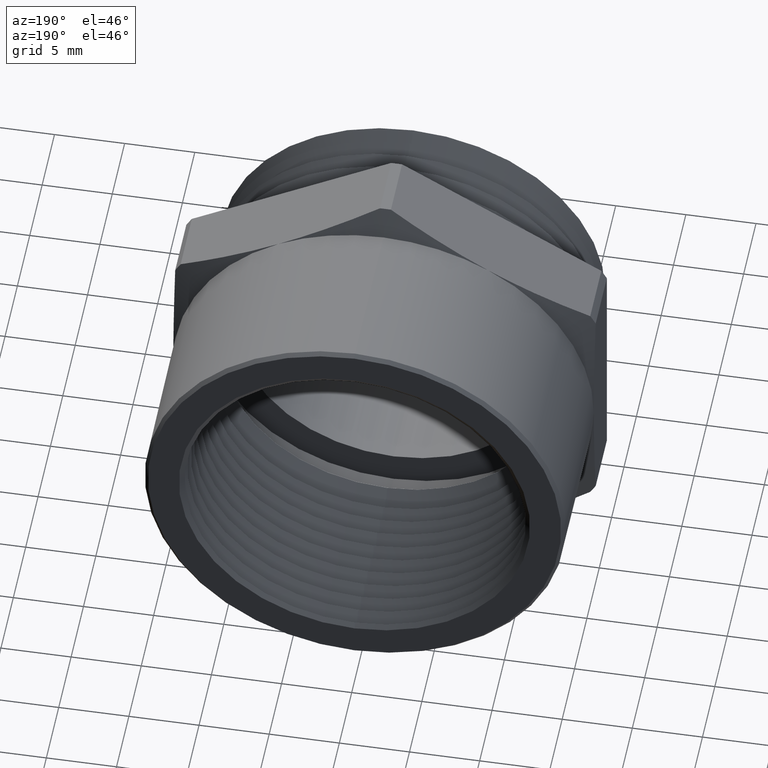
[diagram: clean part render]
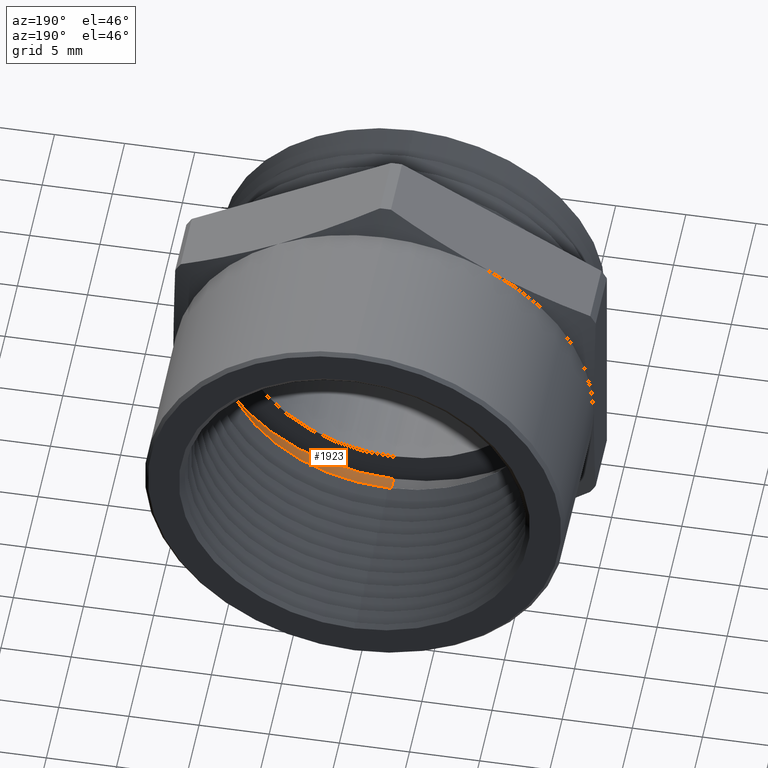
[diagram: same view with one face highlighted and labeled with its STEP entity id]
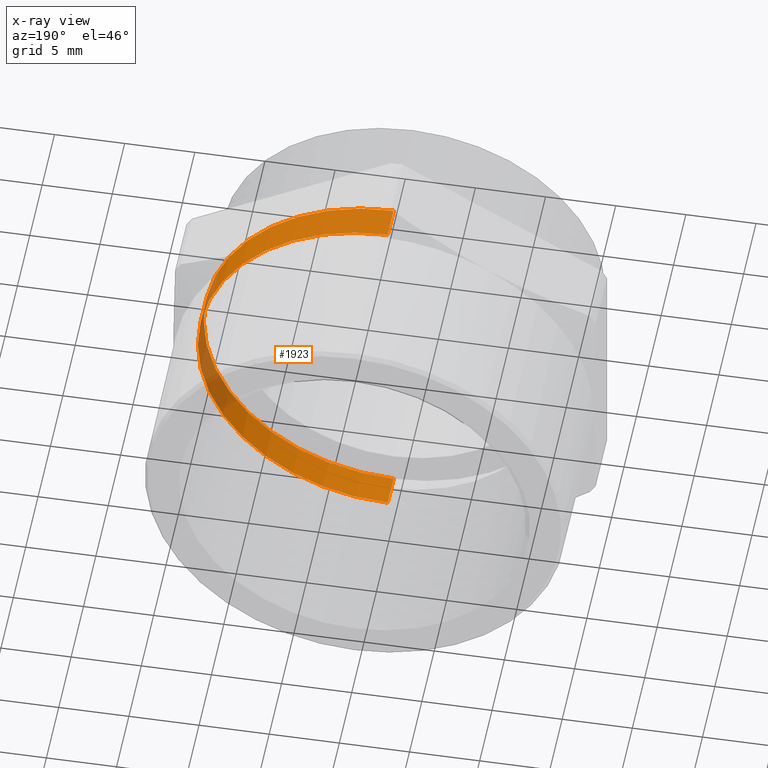
[diagram: x-ray of the same camera — body ghosted, the highlighted face saturated]
A machine part, auxiliary view. The second image highlights one B-rep face of the part: STEP entity #1923.
The next image is the same camera in x-ray: the body ghosted, the highlighted face saturated — about 14% of this face is hidden behind the body in this view.
In plain terms, the highlighted cylindrical surface (partial cylindrical patch) has radius 13.5388 mm, axis along (0, -1, 0).
Its self-contained STEP definition (entity closure, byte-faithful):
#293 = DIRECTION ( 'NONE',  ( 0.0000000000000000000, 0.0000000000000000000, -1.000000000000000000 ) ) ;
#294 = DIRECTION ( 'NONE',  ( 0.0000000000000000000, -1.000000000000000000, 0.0000000000000000000 ) ) ;
#295 = CARTESIAN_POINT ( 'NONE',  ( 0.0000000000000000000, 0.0000000000000000000, 0.0000000000000000000 ) ) ;
#296 = AXIS2_PLACEMENT_3D ( 'NONE', #295, #294, #293 ) ;
#297 = CYLINDRICAL_SURFACE ( 'NONE', #296, 0.5330249999999999700 ) ;
#298 = FACE_OUTER_BOUND ( 'NONE', #1973, .T. ) ;
#299 = DIRECTION ( 'NONE',  ( 0.0000000000000000000, 0.0000000000000000000, -1.000000000000000000 ) ) ;
#300 = DIRECTION ( 'NONE',  ( 0.0000000000000000000, -1.000000000000000000, 0.0000000000000000000 ) ) ;
#301 = CARTESIAN_POINT ( 'NONE',  ( 0.0000000000000000000, 0.4110000000000000900, 0.0000000000000000000 ) ) ;
#302 = AXIS2_PLACEMENT_3D ( 'NONE', #301, #300, #299 ) ;
#303 = CIRCLE ( 'NONE', #302, 0.5330249999999999700 ) ;
#405 = DIRECTION ( 'NONE',  ( 0.0000000000000000000, 0.0000000000000000000, -1.000000000000000000 ) ) ;
#406 = DIRECTION ( 'NONE',  ( 0.0000000000000000000, -1.000000000000000000, 0.0000000000000000000 ) ) ;
#407 = CARTESIAN_POINT ( 'NONE',  ( 0.0000000000000000000, 0.3170000000000000000, 0.0000000000000000000 ) ) ;
#408 = AXIS2_PLACEMENT_3D ( 'NONE', #407, #406, #405 ) ;
#413 = CIRCLE ( 'NONE', #408, 0.5330249999999999700 ) ;
#1144 = CARTESIAN_POINT ( 'NONE',  ( 6.527673601155178400E-017, 0.4110000000000000900, 0.5330249999999999700 ) ) ;
#1187 = DIRECTION ( 'NONE',  ( 0.0000000000000000000, -1.000000000000000000, 0.0000000000000000000 ) ) ;
#1188 = VECTOR ( 'NONE', #1187, 39.37007874015748100 ) ;
#1189 = CARTESIAN_POINT ( 'NONE',  ( 6.527673601155178400E-017, 0.0000000000000000000, 0.5330249999999999700 ) ) ;
#1190 = LINE ( 'NONE', #1189, #1188 ) ;
#1191 = CARTESIAN_POINT ( 'NONE',  ( 0.0000000000000000000, 0.4110000000000000900, -0.5330249999999999700 ) ) ;
#1198 = DIRECTION ( 'NONE',  ( 0.0000000000000000000, -1.000000000000000000, 0.0000000000000000000 ) ) ;
#1199 = VECTOR ( 'NONE', #1198, 39.37007874015748100 ) ;
#1200 = CARTESIAN_POINT ( 'NONE',  ( 0.0000000000000000000, 0.0000000000000000000, -0.5330249999999999700 ) ) ;
#1201 = LINE ( 'NONE', #1200, #1199 ) ;
#1202 = CARTESIAN_POINT ( 'NONE',  ( 0.0000000000000000000, 0.3170000000000000000, -0.5330249999999999700 ) ) ;
#1208 = CARTESIAN_POINT ( 'NONE',  ( 6.527673601155178400E-017, 0.3170000000000000000, 0.5330249999999999700 ) ) ;
#1921 = EDGE_CURVE ( 'NONE', #2491, #2457, #303, .T. ) ;
#1923 = ADVANCED_FACE ( 'NONE', ( #298 ), #297, .F. ) ;
#1973 = EDGE_LOOP ( 'NONE', ( #1974, #1975, #1976, #1977 ) ) ;
#1974 = ORIENTED_EDGE ( 'NONE', *, *, #2493, .F. ) ;
#1975 = ORIENTED_EDGE ( 'NONE', *, *, #1921, .F. ) ;
#1976 = ORIENTED_EDGE ( 'NONE', *, *, #2489, .T. ) ;
#1977 = ORIENTED_EDGE ( 'NONE', *, *, #1978, .T. ) ;
#1978 = EDGE_CURVE ( 'NONE', #2487, #2484, #413, .T. ) ;
#2457 = VERTEX_POINT ( 'NONE', #1144 ) ;
#2484 = VERTEX_POINT ( 'NONE', #1208 ) ;
#2487 = VERTEX_POINT ( 'NONE', #1202 ) ;
#2489 = EDGE_CURVE ( 'NONE', #2491, #2487, #1201, .T. ) ;
#2491 = VERTEX_POINT ( 'NONE', #1191 ) ;
#2493 = EDGE_CURVE ( 'NONE', #2457, #2484, #1190, .T. ) ;